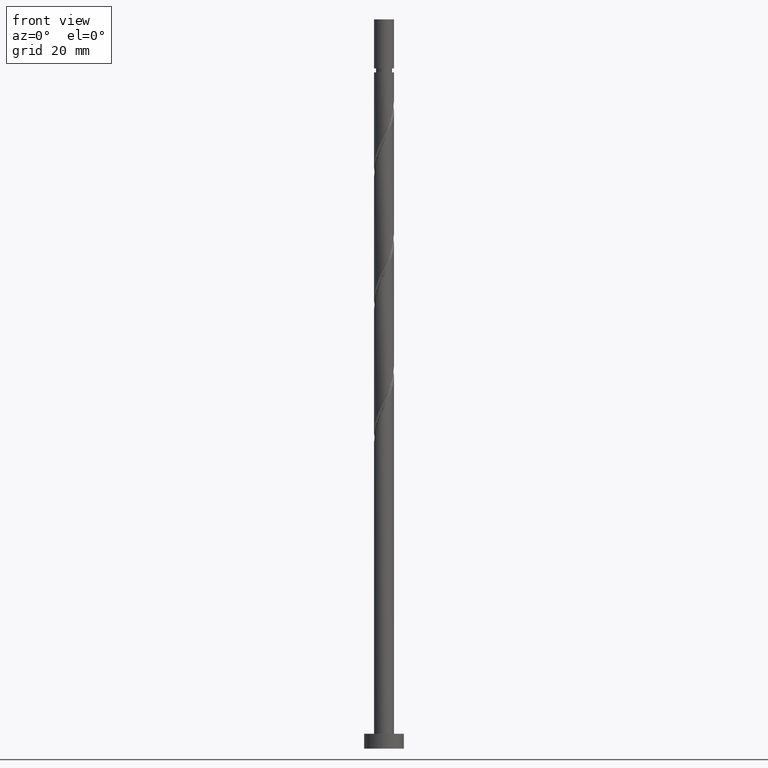
[diagram: clean part render]
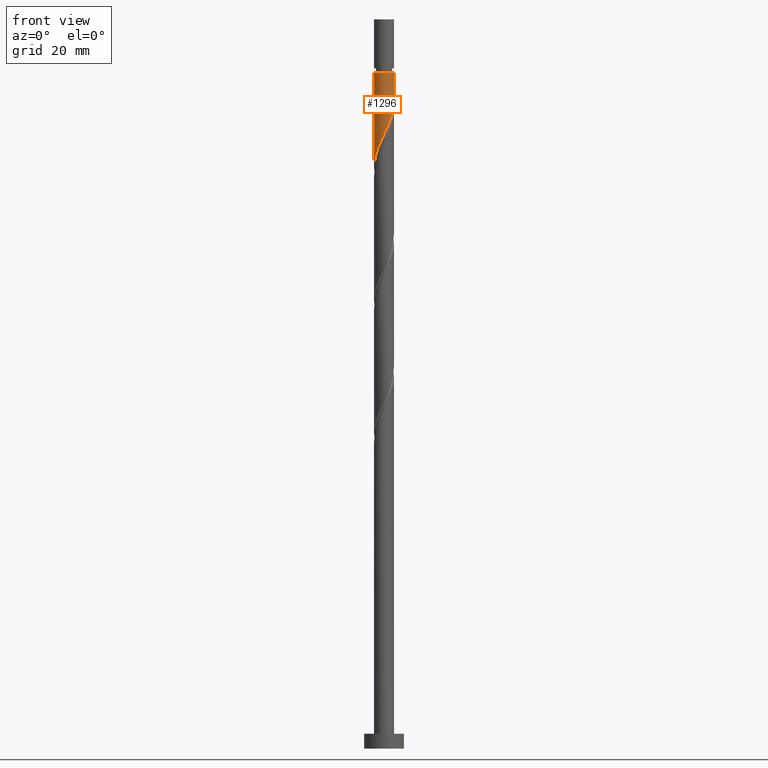
[diagram: same view with one face highlighted and labeled with its STEP entity id]
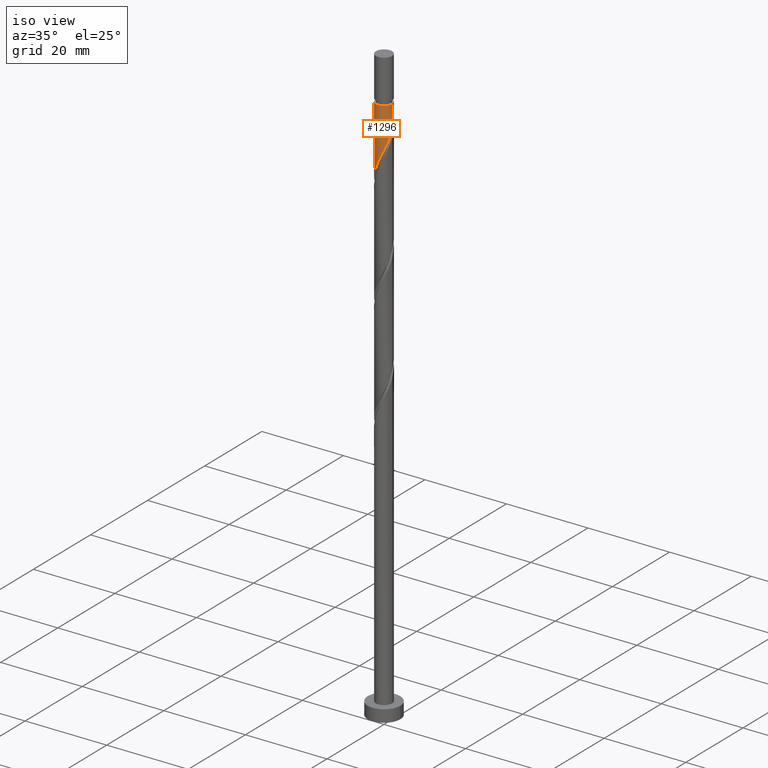
[diagram: same view with one face highlighted and labeled with its STEP entity id]
A machine part, front view. The second image highlights one B-rep face of the part: STEP entity #1296.
A second angle (iso view) of the same face is appended — the face is thin or edge-on in the first view.
In plain terms, the highlighted cylindrical surface (edge-blend (fillet) strip) has radius 2 mm, axis along (-0, -0, -1).
Its self-contained STEP definition (entity closure, byte-faithful):
#20 = DIRECTION ( 'NONE',  ( -1.000000000000000000, 0.000000000000000000, 0.000000000000000000 ) ) ;
#57 = VERTEX_POINT ( 'NONE', #777 ) ;
#71 = CARTESIAN_POINT ( 'NONE',  ( 2.000000000000000000, -0.05755105304764324831, 129.9044721894541965 ) ) ;
#91 = LINE ( 'NONE', #1609, #1362 ) ;
#188 = CARTESIAN_POINT ( 'NONE',  ( 1.999999999999995781, 2.449293598294703456E-16, 135.8437823815381762 ) ) ;
#207 = CARTESIAN_POINT ( 'NONE',  ( 1.980155124014550738, -0.4020876473299552223, 129.1771157148715190 ) ) ;
#222 = CARTESIAN_POINT ( 'NONE',  ( 0.4568343776401062040, -1.968245701812301407, 124.3286308663866322 ) ) ;
#276 = VECTOR ( 'NONE', #1562, 1000.000000000000000 ) ;
#343 = AXIS2_PLACEMENT_3D ( 'NONE', #1169, #1297, #20 ) ;
#347 = ORIENTED_EDGE ( 'NONE', *, *, #1581, .T. ) ;
#354 = CARTESIAN_POINT ( 'NONE',  ( 1.617545623245912667, -1.176242388590886589, 127.3589338966897060 ) ) ;
#376 = CARTESIAN_POINT ( 'NONE',  ( -1.948211798543800555, -0.4521844623765079452, 117.6619641997200318 ) ) ;
#454 = VERTEX_POINT ( 'NONE', #188 ) ;
#457 = DIRECTION ( 'NONE',  ( -0.000000000000000000, -0.000000000000000000, -1.000000000000000000 ) ) ;
#463 = CARTESIAN_POINT ( 'NONE',  ( -0.6798004310727957522, -1.902776961498551689, 121.9043884421442527 ) ) ;
#475 = DIRECTION ( 'NONE',  ( -1.000000000000000000, 0.000000000000000000, 0.000000000000000000 ) ) ;
#497 = CARTESIAN_POINT ( 'NONE',  ( -2.000000000000000000, 1.533074122108385710E-15, 116.6932368608390931 ) ) ;
#523 = EDGE_CURVE ( 'NONE', #454, #542, #1472, .T. ) ;
#542 = VERTEX_POINT ( 'NONE', #808 ) ;
#606 = CARTESIAN_POINT ( 'NONE',  ( 0.9928482695149669635, -1.759812803970227879, 125.5407520785078646 ) ) ;
#620 = CARTESIAN_POINT ( 'NONE',  ( -1.741900447066338398, -0.9827425057002938669, 118.8740854118412074 ) ) ;
#712 = CARTESIAN_POINT ( 'NONE',  ( 1.883409435608316862, -0.6728810428757546758, 128.5710551088109241 ) ) ;
#721 = CARTESIAN_POINT ( 'NONE',  ( -1.188337955536407309, -1.634179211325359038, 120.6922672300230488 ) ) ;
#777 = CARTESIAN_POINT ( 'NONE',  ( -2.000000000000000000, 1.533074122108385710E-15, 116.6932368608390931 ) ) ;
#806 = EDGE_CURVE ( 'NONE', #1392, #57, #91, .T. ) ;
#808 = CARTESIAN_POINT ( 'NONE',  ( 2.000000000000000000, 8.226251386923045924E-16, 130.0265701941724217 ) ) ;
#898 = AXIS2_PLACEMENT_3D ( 'NONE', #1610, #457, #475 ) ;
#960 = CARTESIAN_POINT ( 'NONE',  ( 0.1703224295138022759, -1.992734370156874713, 123.7225702603260657 ) ) ;
#974 = CARTESIAN_POINT ( 'NONE',  ( -0.9340691933046014750, -1.768478086411955585, 121.2983278360836863 ) ) ;
#980 = CARTESIAN_POINT ( 'NONE',  ( 1.996690616564939402, -0.1150068768444770795, 129.7831763209321139 ) ) ;
#1004 = CARTESIAN_POINT ( 'NONE',  ( -1.394470680848406197, -1.433684595806965723, 120.0862066239624255 ) ) ;
#1059 = CIRCLE ( 'NONE', #343, 1.999999999999995781 ) ;
#1099 = CARTESIAN_POINT ( 'NONE',  ( 1.448427499289742348, -1.408810338760219771, 126.7528732906291111 ) ) ;
#1104 = DIRECTION ( 'NONE',  ( -0.000000000000000000, -0.000000000000000000, -1.000000000000000000 ) ) ;
#1107 = ORIENTED_EDGE ( 'NONE', *, *, #1457, .F. ) ;
#1112 = CARTESIAN_POINT ( 'NONE',  ( -1.999999999999995781, 0.000000000000000000, 135.8437823815381762 ) ) ;
#1169 = CARTESIAN_POINT ( 'NONE',  ( 0.000000000000000000, 0.000000000000000000, 135.8437823815381762 ) ) ;
#1189 = ORIENTED_EDGE ( 'NONE', *, *, #523, .F. ) ;
#1200 = CARTESIAN_POINT ( 'NONE',  ( 2.000000000000000000, 2.449293598294706414E-16, 146.5000000000000000 ) ) ;
#1296 = ADVANCED_FACE ( 'NONE', ( #1620 ), #1348, .T. ) ;
#1297 = DIRECTION ( 'NONE',  ( -0.000000000000000000, -0.000000000000000000, -1.000000000000000000 ) ) ;
#1348 = CYLINDRICAL_SURFACE ( 'NONE', #898, 2.000000000000000000 ) ;
#1356 = CARTESIAN_POINT ( 'NONE',  ( 2.000000000000000000, 8.226251386923045924E-16, 130.0265701941724217 ) ) ;
#1362 = VECTOR ( 'NONE', #1104, 1000.000000000000000 ) ;
#1376 = CARTESIAN_POINT ( 'NONE',  ( 1.220637884402354656, -1.584311571365223825, 126.1468126845684878 ) ) ;
#1382 = CARTESIAN_POINT ( 'NONE',  ( -1.600603406160404640, -1.233189980288572851, 119.4801460179018306 ) ) ;
#1392 = VERTEX_POINT ( 'NONE', #1112 ) ;
#1393 = ORIENTED_EDGE ( 'NONE', *, *, #806, .T. ) ;
#1450 = EDGE_LOOP ( 'NONE', ( #1189, #347, #1393, #1107 ) ) ;
#1457 = EDGE_CURVE ( 'NONE', #542, #57, #1495, .T. ) ;
#1472 = LINE ( 'NONE', #1200, #276 ) ;
#1474 = CARTESIAN_POINT ( 'NONE',  ( -0.1161895186125007778, -2.017223038501448240, 123.1165096542654283 ) ) ;
#1495 =( BOUNDED_CURVE ( )  B_SPLINE_CURVE ( 2, ( #1356, #71, #980, #207, #712, #1505, #354, #1099, #1376, #606, #1600, #222, #960, #1474, #1615, #463, #974, #721, #1004, #1382, #620, #1527, #376, #1635, #497 ),
 .UNSPECIFIED., .F., .T. ) 
 B_SPLINE_CURVE_WITH_KNOTS ( ( 3, 2, 2, 2, 2, 2, 2, 2, 2, 2, 2, 2, 3 ),
 ( 0.3045252162417512731, 0.3068181818181818232, 0.3181818181818181768, 0.3295454545454545303, 0.3409090909090908839, 0.3522727272727272929, 0.3636363636363636465, 0.3750000000000000000, 0.3863636363636363535, 0.3977272727272727071, 0.4090909090909091161, 0.4204545454545454697, 0.4295252162417512731 ),
 .UNSPECIFIED. ) 
 CURVE ( )  GEOMETRIC_REPRESENTATION_ITEM ( )  RATIONAL_B_SPLINE_CURVE ( ( 0.9061101570135583483, 0.9072237824201405676, 0.9090909090909180534, 0.8998376744372204028, 0.9090909090909180534, 0.8998376744372204028, 0.9090909090909180534, 0.8998376744372204028, 0.9090909090909180534, 0.8998376744372204028, 0.9090909090909180534, 0.8998376744372204028, 0.9090909090909180534, 0.8998376744372204028, 0.9090909090909180534, 0.8998376744372204028, 0.9090909090909180534, 0.8998376744372204028, 0.9090909090909180534, 0.8998376744372204028, 0.9090909090909180534, 0.8998376744372204028, 0.9090909090909180534, 0.9017048011079978886, 0.9061101570135583483 ) ) 
 REPRESENTATION_ITEM ( '' )  );
#1505 = CARTESIAN_POINT ( 'NONE',  ( 1.786663747202082320, -0.9436744384215535186, 127.9649945027503151 ) ) ;
#1527 = CARTESIAN_POINT ( 'NONE',  ( -1.883197487972271711, -0.7322950311120145495, 118.2680248057805983 ) ) ;
#1562 = DIRECTION ( 'NONE',  ( -0.000000000000000000, -0.000000000000000000, -1.000000000000000000 ) ) ;
#1581 = EDGE_CURVE ( 'NONE', #454, #1392, #1059, .T. ) ;
#1600 = CARTESIAN_POINT ( 'NONE',  ( 0.7248413235775366115, -1.864029252891264754, 124.9346914724472697 ) ) ;
#1609 = CARTESIAN_POINT ( 'NONE',  ( -2.000000000000000000, 0.000000000000000000, 146.5000000000000000 ) ) ;
#1610 = CARTESIAN_POINT ( 'NONE',  ( 0.000000000000000000, 0.000000000000000000, 146.5000000000000000 ) ) ;
#1615 = CARTESIAN_POINT ( 'NONE',  ( -0.3979949748426482303, -1.959999999999999964, 122.5104490482048476 ) ) ;
#1620 = FACE_OUTER_BOUND ( 'NONE', #1450, .T. ) ;
#1635 = CARTESIAN_POINT ( 'NONE',  ( -1.999999999999999556, -0.2290578547702478707, 117.1791968138104068 ) ) ;